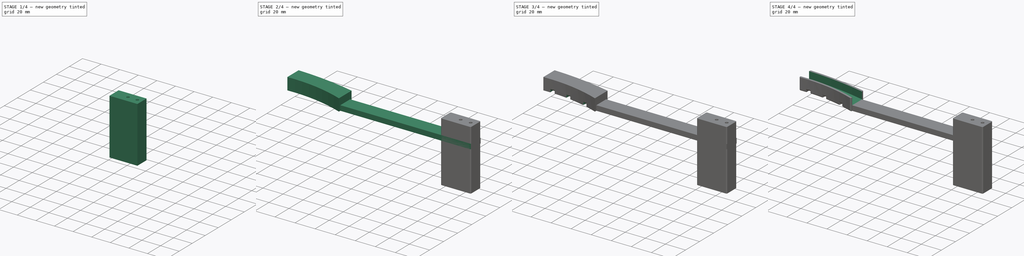
[diagram: build sequence overview — one tinted view per stage of 4, left to right]
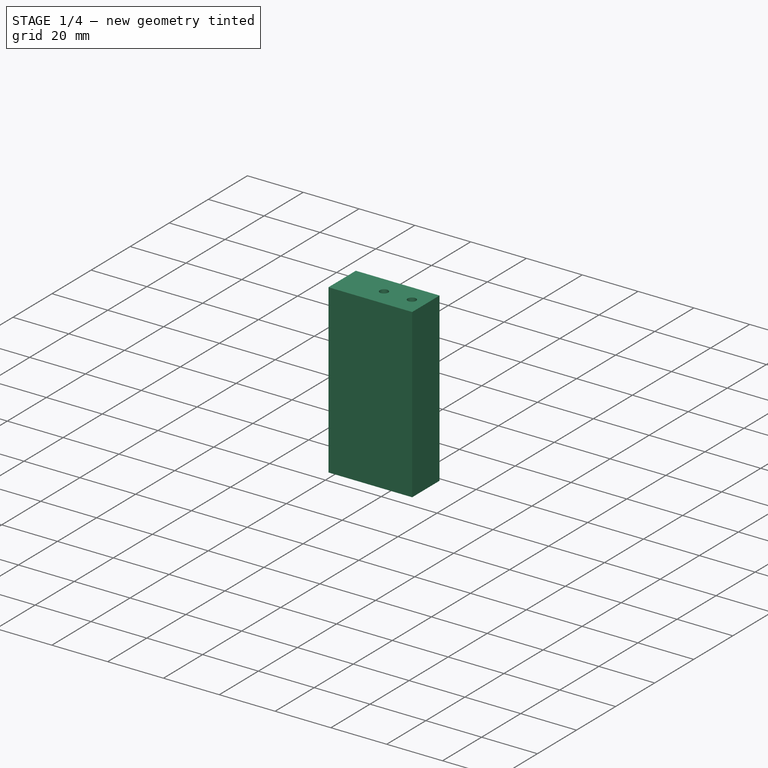
[diagram: stage 1 of 4 — iso view after this stage's code; geometry added in this stage tinted green]
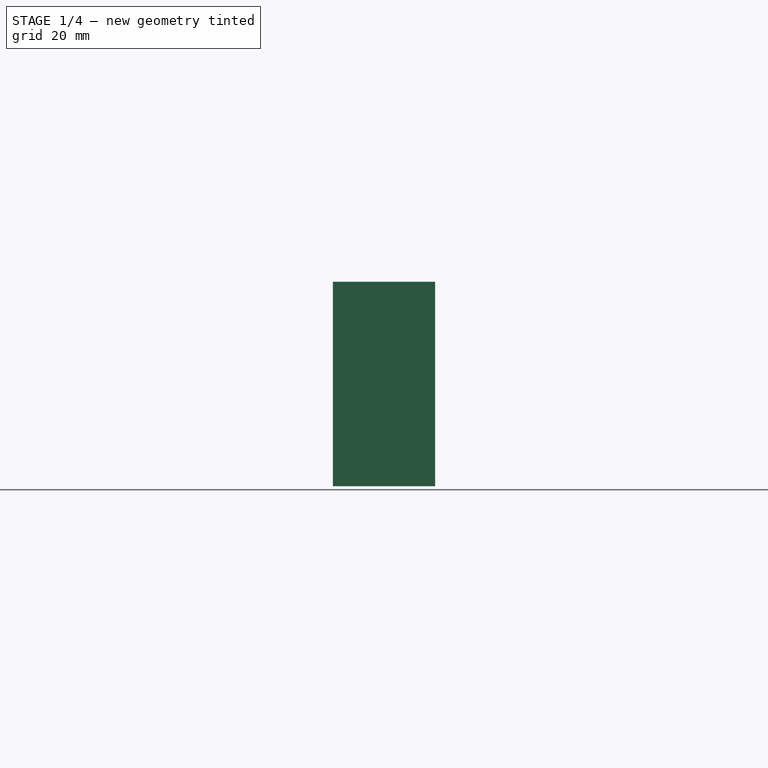
[diagram: stage 1 of 4 — front view after this stage's code; geometry added in this stage tinted green]
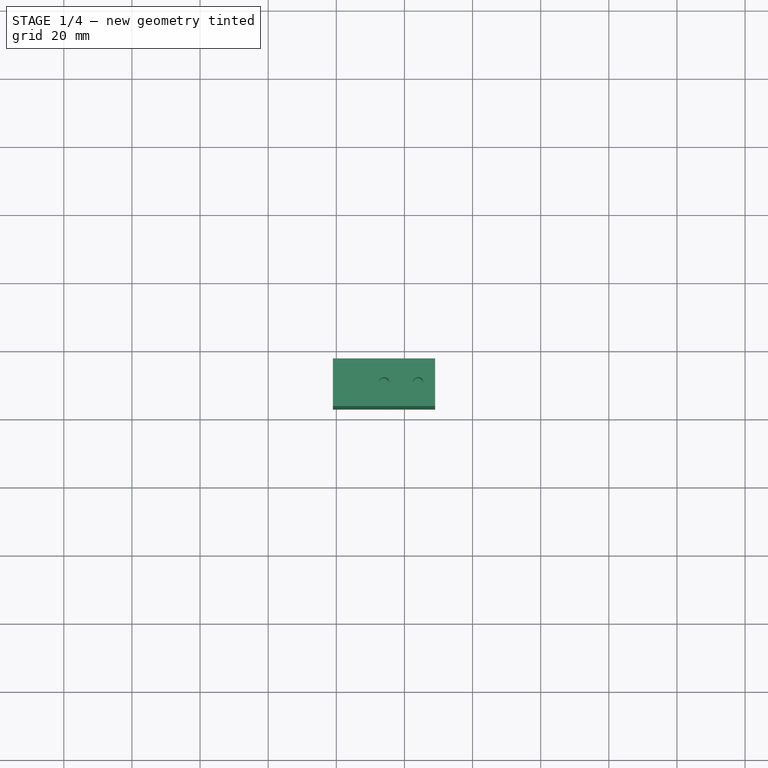
[diagram: stage 1 of 4 — top view after this stage's code; geometry added in this stage tinted green]
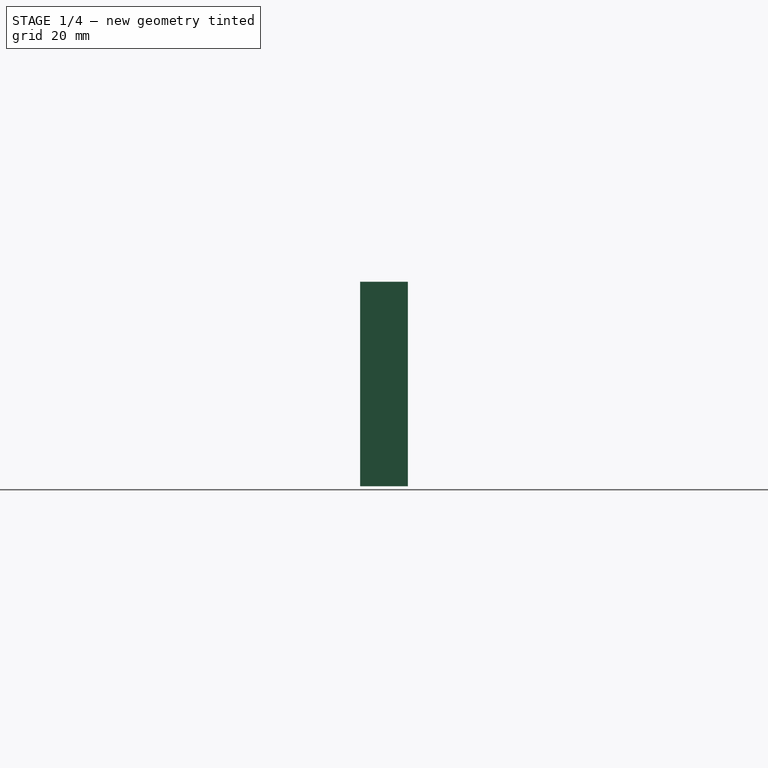
[diagram: stage 1 of 4 — right view after this stage's code; geometry added in this stage tinted green]
FCSTD DOCUMENT  (FreeCAD 0.18R16131 (Git))
Label: OvenHandleMount
License: All rights reserved
LicenseURL: http://en.wikipedia.org/wiki/All_rights_reserved
objects: Sketcher::SketchObject×11, PartDesign::Pad×4, PartDesign::SubtractivePipe×3, PartDesign::Fillet×2, PartDesign::Body×2, PartDesign::Pocket×1
note: 31 computed .brp shape members not serialized (recipe doc carries the construction recipe); baked Part::Feature solids carry a one-line shape summary decoded from their .brp

FEATURE [PartDesign::Body] Body
  Group = -> [Sketch,Pad,Pad002,SubtractivePipe005,SubtractivePipe,SubtractivePipe004,Sketch011,Pocket001,Sketch012,Sketch013,MirroredSketch001,MirroredSketch,MirroredSketch002,Sketch014,Fillet]
  Origin = -> Origin
  Tip = -> Fillet
FEATURE [Sketcher::SketchObject] Sketch015
  AttachmentOffset = pos=(0,0,4) rot=(0,0,1;0rad)
  MapMode = 5
  Placement = pos=(0,0,4) rot=(0,0,1;0rad)
  Support = -> [XY_Plane001]
  expr: Constraints[0] = -39 - 100
  sketch-geometry (8):
    g0: LineSegment StartX=169 StartY=37 StartZ=0 EndX=139 EndY=37 EndZ=0
    g1: LineSegment StartX=169 StartY=23 StartZ=0 EndX=139 EndY=23 EndZ=0
    g2: LineSegment StartX=139 StartY=37 StartZ=0 EndX=139 EndY=23 EndZ=0
    g3: Circle CenterX=164 CenterY=30 CenterZ=0 NormalX=0 NormalY=0 NormalZ=1 AngleXU=0 Radius=1.5
    g4: Circle CenterX=154 CenterY=30 CenterZ=0 NormalX=0 NormalY=0 NormalZ=1 AngleXU=0 Radius=1.5
    g5: GeomPoint X=139 Y=30 Z=0
    g6: LineSegment StartX=169 StartY=37 StartZ=0 EndX=169 EndY=23 EndZ=0
    g7: GeomPoint X=169 Y=30 Z=0
  constraints (20):
    c: DistanceX(g0,g-1) = -139
    c: DistanceY(g-1,g0) = 37
    c: Coincident(g2,g0)
    c: Coincident(g2,g1)
    c: Parallel(g0,g1)
    c: Horizontal(g0)
    c: DistanceX(g1,g1) = 30
    c: Diameter(g3) = 3
    c: Diameter(g4) = 3
    c: DistanceY(g4,g3) = 0
    c: DistanceX(g4,g3) = 10
    c: Symmetric(g1,g0,g5)
    c: DistanceY(g4,g5) = 0
    c: Coincident(g6,g0)
    c: Coincident(g6,g1)
    c: Symmetric(g0,g1,g7)
    c: DistanceX(g3,g7) = 5
    c: Vertical(g6)
    c: Vertical(g2)
    c: DistanceY(g2,g2) = 14
FEATURE [Sketcher::SketchObject] Sketch016
  AttachmentOffset = pos=(0,0,4) rot=(0,0,1;0rad)
  MapMode = 5
  Placement = pos=(0,0,4) rot=(0,0,1;0rad)
  Support = -> [XY_Plane001]
  expr: Constraints[0] = -39 - 100
  sketch-geometry (8):
    g0: LineSegment StartX=169 StartY=37 StartZ=0 EndX=139 EndY=37 EndZ=0
    g1: LineSegment StartX=169 StartY=23 StartZ=0 EndX=139 EndY=23 EndZ=0
    g2: LineSegment StartX=139 StartY=37 StartZ=0 EndX=139 EndY=23 EndZ=0
    g3: Circle [constr] CenterX=164 CenterY=30 CenterZ=0 NormalX=0 NormalY=0 NormalZ=1 AngleXU=0 Radius=1.5
    g4: Circle [constr] CenterX=154 CenterY=30 CenterZ=0 NormalX=0 NormalY=0 NormalZ=1 AngleXU=0 Radius=1.5
    g5: GeomPoint X=139 Y=30 Z=0
    g6: LineSegment StartX=169 StartY=37 StartZ=0 EndX=169 EndY=23 EndZ=0
    g7: GeomPoint X=169 Y=30 Z=0
  constraints (20):
    c: DistanceX(g0,g-1) = -139
    c: DistanceY(g-1,g0) = 37
    c: Coincident(g2,g0)
    c: Coincident(g2,g1)
    c: Parallel(g0,g1)
    c: Horizontal(g0)
    c: DistanceX(g1,g1) = 30
    c: Diameter(g3) = 3
    c: Diameter(g4) = 3
    c: DistanceY(g4,g3) = 0
    c: DistanceX(g4,g3) = 10
    c: Symmetric(g1,g0,g5)
    c: DistanceY(g4,g5) = 0
    c: Coincident(g6,g0)
    c: Coincident(g6,g1)
    c: Symmetric(g0,g1,g7)
    c: DistanceX(g3,g7) = 5
    c: Vertical(g6)
    c: Vertical(g2)
    c: DistanceY(g2,g2) = 14
FEATURE [PartDesign::Pad] Pad003
  Length = 20
  Length2 = 100
  Profile = -> Sketch015
  Type = 0
FEATURE [PartDesign::Pad] Pad004
  BaseFeature = -> Pad003
  Length = 40
  Length2 = 100
  Profile = -> Sketch016
  Reversed = true
  Type = 0
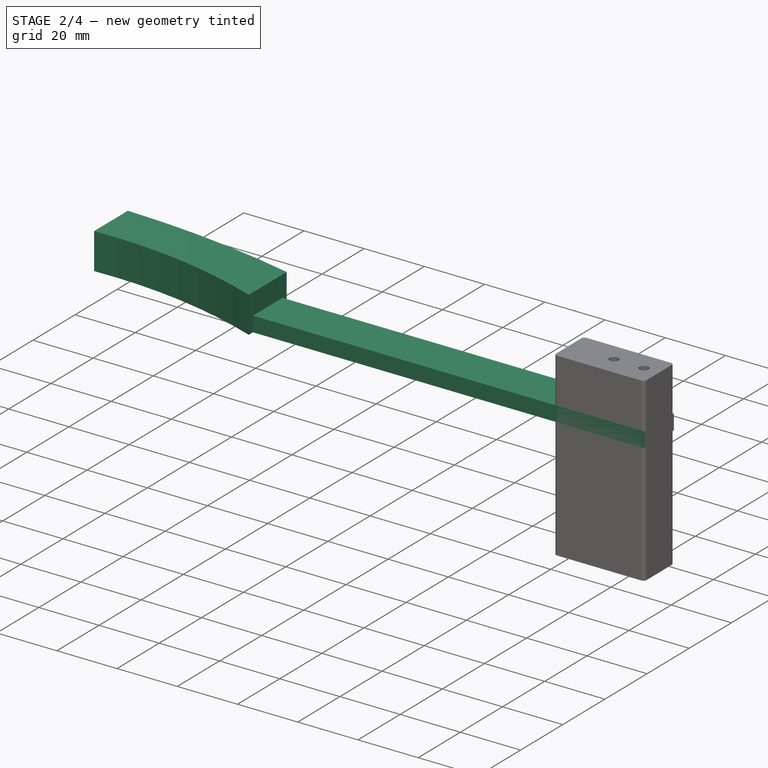
[diagram: stage 2 of 4 — iso view after this stage's code; geometry added in this stage tinted green]
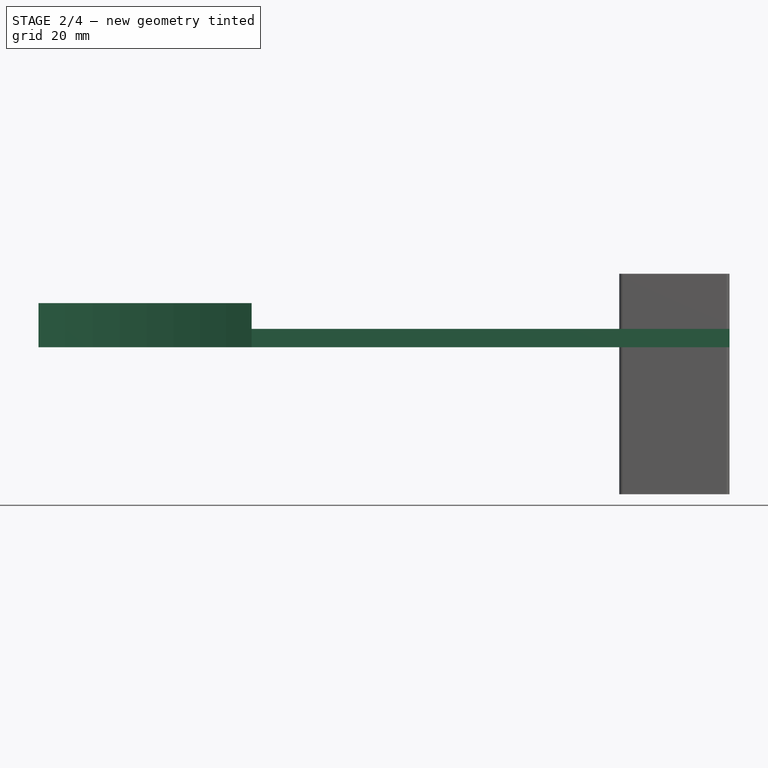
[diagram: stage 2 of 4 — front view after this stage's code; geometry added in this stage tinted green]
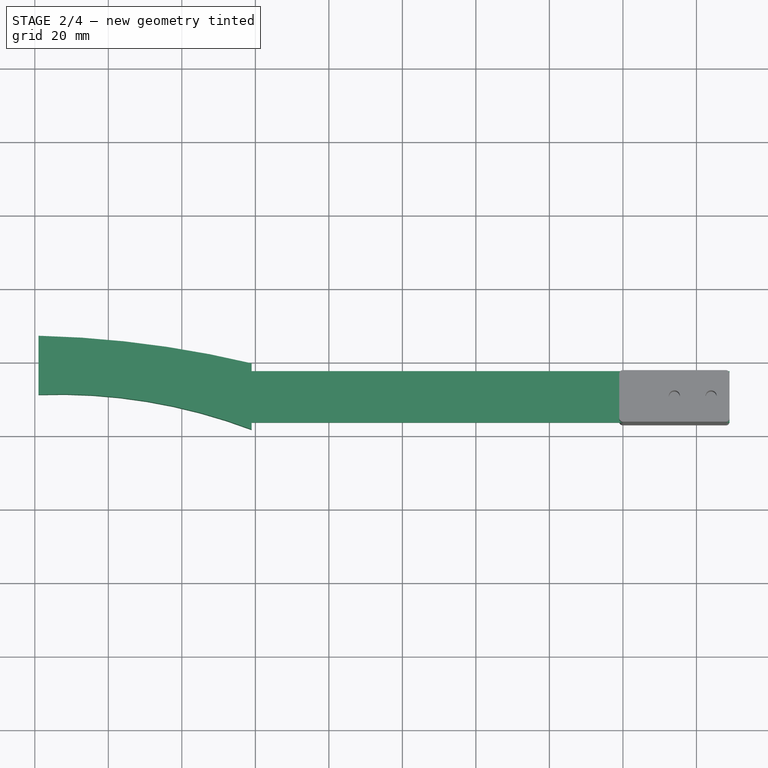
[diagram: stage 2 of 4 — top view after this stage's code; geometry added in this stage tinted green]
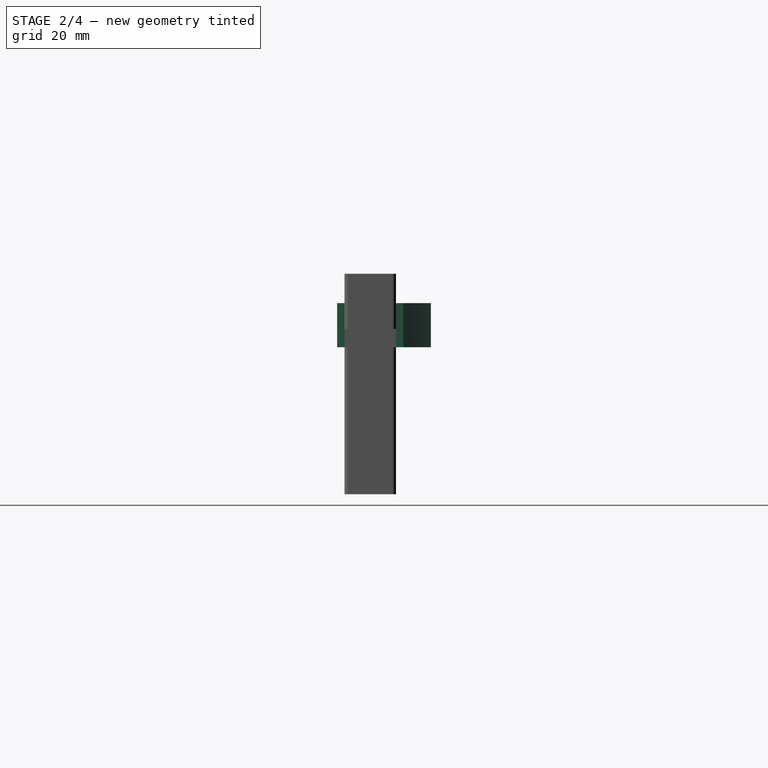
[diagram: stage 2 of 4 — right view after this stage's code; geometry added in this stage tinted green]
FEATURE [Sketcher::SketchObject] Sketch
  AttachmentOffset = pos=(0,0,4) rot=(0,0,1;0rad)
  MapMode = 5
  Placement = pos=(0,0,4) rot=(0,0,1;0rad)
  Support = -> [XY_Plane]
  sketch-geometry (17):
    g0: ArcOfCircle [constr] CenterX=-25.3963 CenterY=-232.982 CenterZ=0 NormalX=0 NormalY=0 NormalZ=1 AngleXU=0 Radius=277.555 StartAngle=1.33665 EndAngle=1.54775
    g1: GeomPoint X=-19 Y=44.5 Z=0
    g2: GeomPoint X=39 Y=37 Z=0
    g3: GeomPoint X=19 Y=41 Z=0
    g4: GeomPoint X=39 Y=23 Z=0
    g5: GeomPoint X=19 Y=29 Z=0
    g6: GeomPoint X=-19 Y=32.5 Z=0
    g7: ArcOfCircle [constr] CenterX=-13.4794 CenterY=-115.598 CenterZ=0 NormalX=0 NormalY=0 NormalZ=1 AngleXU=0 Radius=148.201 StartAngle=1.20883 EndAngle=1.60806
    g8: LineSegment [constr] StartX=39 StartY=37 StartZ=0 EndX=39 EndY=23 EndZ=0
    g9: LineSegment StartX=169 StartY=37 StartZ=0 EndX=39 EndY=37 EndZ=0
    g10: LineSegment StartX=169 StartY=23 StartZ=0 EndX=39 EndY=23 EndZ=0
    g11: LineSegment StartX=39 StartY=37 StartZ=0 EndX=39 EndY=23 EndZ=0
    g12: Circle CenterX=164 CenterY=30 CenterZ=0 NormalX=0 NormalY=0 NormalZ=1 AngleXU=0 Radius=1.65
    g13: Circle CenterX=154 CenterY=30 CenterZ=0 NormalX=0 NormalY=0 NormalZ=1 AngleXU=0 Radius=1.65
    g14: GeomPoint X=39 Y=30 Z=0
    g15: LineSegment StartX=169 StartY=37 StartZ=0 EndX=169 EndY=23 EndZ=0
    g16: GeomPoint X=169 Y=30 Z=0
  constraints (38):
    c: DistanceX(g3,g-1) = -19
    c: DistanceX(g2,g-1) = -39
    c: DistanceX(g-1,g1) = -19
    c: DistanceY(g-1,g2) = 37
    c: DistanceY(g-1,g3) = 41
    c: DistanceY(g-1,g1) = 44.5
    c: DistanceX(g-1,g6) = -19
    c: DistanceX(g5,g-1) = -19
    c: DistanceX(g4,g-1) = -39
    c: DistanceY(g-1,g4) = 23
    c: DistanceY(g-1,g5) = 29
    c: DistanceY(g-1,g6) = 32.5
    c: PointOnObject(g5,g7)
    c: PointOnObject(g3,g0)
    c: Coincident(g7,g4)
    c: Coincident(g2,g0)
    c: Coincident(g6,g7)
    c: Coincident(g0,g1)
    c: Coincident(g8,g0)
    c: Coincident(g8,g4)
    c: Coincident(g11,g9)
    c: Coincident(g11,g10)
    c: Parallel(g9,g10)
    c: Horizontal(g9)
    c: DistanceX(g10,g10) = 130
    c: Diameter(g12) = 3.3
    c: Diameter(g13) = 3.3
    c: DistanceY(g13,g12) = 0
    c: DistanceX(g13,g12) = 10
    c: Symmetric(g10,g9,g14)
    c: DistanceY(g13,g14) = 0
    c: Coincident(g15,g9)
    c: Coincident(g15,g10)
    c: Symmetric(g9,g10,g16)
    c: DistanceX(g12,g16) = 5
    c: Vertical(g15)
    c: Coincident(g2,g9)
    c: Coincident(g10,g4)
FEATURE [PartDesign::Pad] Pad
  Length = 5
  Length2 = 100
  Profile = -> Sketch
  Type = 0
FEATURE [Sketcher::SketchObject] Sketch004
  MapMode = 5
  Placement = pos=(0,0,4) rot=(0,0,1;0rad)
  sketch-geometry (22):
    g0: ArcOfCircle [constr] CenterX=-25.3963 CenterY=-232.982 CenterZ=0 NormalX=0 NormalY=0 NormalZ=1 AngleXU=0 Radius=277.555 StartAngle=1.33665 EndAngle=1.54775
    g1: GeomPoint X=-19 Y=44.5 Z=0
    g2: GeomPoint X=39 Y=37 Z=0
    g3: GeomPoint X=19 Y=41 Z=0
    g4: GeomPoint X=39 Y=23 Z=0
    g5: GeomPoint X=19 Y=29 Z=0
    g6: GeomPoint X=-19 Y=32.5 Z=0
    g7: ArcOfCircle [constr] CenterX=-13.4794 CenterY=-115.598 CenterZ=0 NormalX=0 NormalY=0 NormalZ=1 AngleXU=0 Radius=148.201 StartAngle=1.20883 EndAngle=1.60806
    g8: GeomPoint X=-19 Y=46.5 Z=0
    g9: GeomPoint X=19 Y=43 Z=0
    g10: GeomPoint X=39 Y=39 Z=0
    g11: GeomPoint X=-19 Y=30.5 Z=0
    g12: GeomPoint X=19 Y=27 Z=0
    g13: GeomPoint X=39 Y=21 Z=0
    g14: ArcOfCircle CenterX=-25.3963 CenterY=-230.982 CenterZ=0 NormalX=0 NormalY=0 NormalZ=1 AngleXU=0 Radius=277.555 StartAngle=1.33665 EndAngle=1.54775
    g15: ArcOfCircle CenterX=-13.4794 CenterY=-117.598 CenterZ=0 NormalX=0 NormalY=0 NormalZ=1 AngleXU=0 Radius=148.201 StartAngle=1.20883 EndAngle=1.60806
    g16: LineSegment [constr] StartX=-19 StartY=46.5 StartZ=0 EndX=-19 EndY=44.5 EndZ=0
    g17: LineSegment [constr] StartX=39 StartY=39 StartZ=0 EndX=39 EndY=37 EndZ=0
    g18: LineSegment [constr] StartX=39 StartY=23 StartZ=0 EndX=39 EndY=21 EndZ=0
    g19: LineSegment [constr] StartX=-19 StartY=32.5 StartZ=0 EndX=-19 EndY=30.5 EndZ=0
    g20: LineSegment StartX=39 StartY=39 StartZ=0 EndX=39 EndY=21 EndZ=0
    g21: LineSegment StartX=-19 StartY=46.5 StartZ=0 EndX=-19 EndY=30.5 EndZ=0
  constraints (48):
    c: DistanceX(g3,g-1) = -19
    c: DistanceX(g2,g-1) = -39
    c: DistanceX(g-1,g1) = -19
    c: DistanceY(g-1,g2) = 37
    c: DistanceY(g-1,g3) = 41
    c: DistanceY(g-1,g1) = 44.5
    c: DistanceX(g-1,g6) = -19
    c: DistanceX(g5,g-1) = -19
    c: DistanceX(g4,g-1) = -39
    c: DistanceY(g-1,g4) = 23
    c: DistanceY(g-1,g5) = 29
    c: DistanceY(g-1,g6) = 32.5
    c: PointOnObject(g5,g7)
    c: PointOnObject(g3,g0)
    c: Coincident(g7,g4)
    c: Coincident(g2,g0)
    c: Coincident(g6,g7)
    c: Coincident(g0,g1)
    c: DistanceX(g4,g13) = 0
    c: DistanceX(g0,g10) = 0
    c: DistanceX(g3,g9) = 0
    c: DistanceX(g8,g0) = 0
    c: DistanceX(g11,g6) = 0
    c: DistanceX(g12,g5) = 0
    c: Coincident(g13,g15)
    c: Coincident(g11,g15)
    c: Coincident(g8,g14)
    c: Coincident(g14,g10)
    c: PointOnObject(g9,g14)
    c: PointOnObject(g12,g15)
    c: DistanceY(g12,g5) = 2
    c: DistanceY(g13,g4) = 2
    c: DistanceY(g11,g6) = 2
    c: DistanceY(g0,g8) = 2
    c: DistanceY(g3,g9) = 2
    c: DistanceY(g10,g0) = -2
    c: Coincident(g16,g8)
    c: Coincident(g16,g0)
    c: Coincident(g19,g6)
    c: Coincident(g19,g11)
    c: Coincident(g18,g4)
    c: Coincident(g18,g13)
    c: Coincident(g17,g10)
    c: Coincident(g17,g0)
    c: Coincident(g21,g11)
    c: Coincident(g21,g8)
    c: Coincident(g20,g10)
    c: Coincident(g20,g13)
FEATURE [PartDesign::Pad] Pad002
  BaseFeature = -> Pad
  Length = 12
  Length2 = 100
  Profile = -> Sketch004
  Type = 0
FEATURE [PartDesign::Fillet] Fillet001
  Base = -> Pad004 [Edge18,Edge11,Edge20,Edge12]
  BaseFeature = -> Pad004
  Radius = 1
FEATURE [PartDesign::Body] Body001
  Group = -> [Sketch015,Pad003,Sketch016,Pad004,Fillet001]
  Origin = -> Origin001
  Placement = pos=(0,60,33) rot=(1,0,0;3.14159rad)
  Tip = -> Fillet001
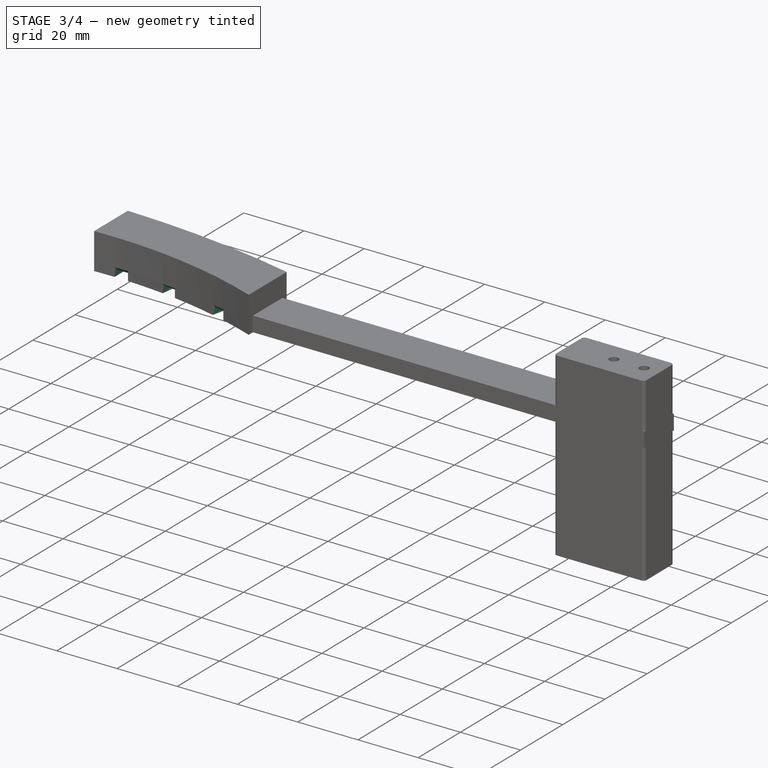
[diagram: stage 3 of 4 — iso view after this stage's code; geometry added in this stage tinted green]
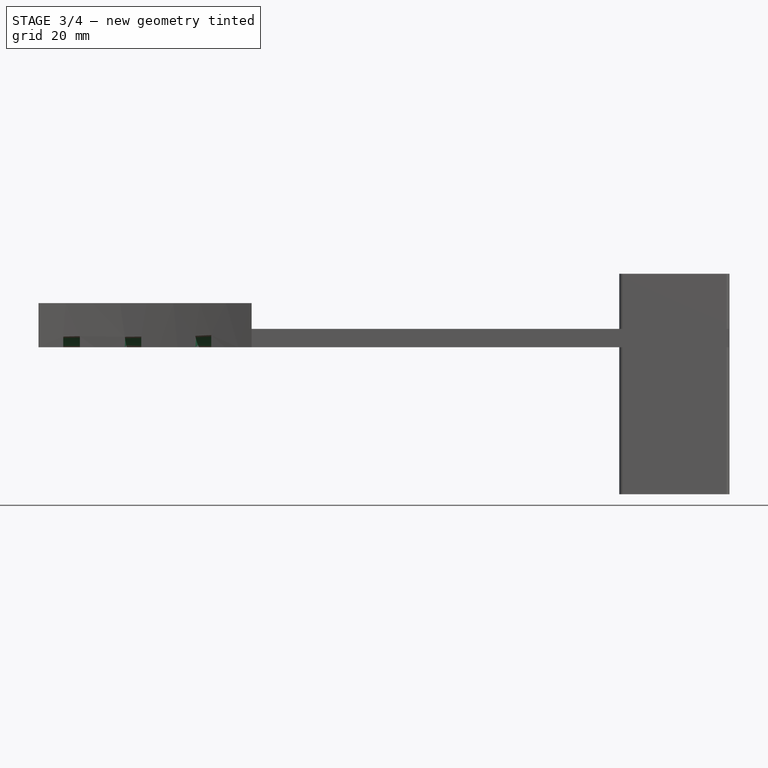
[diagram: stage 3 of 4 — front view after this stage's code; geometry added in this stage tinted green]
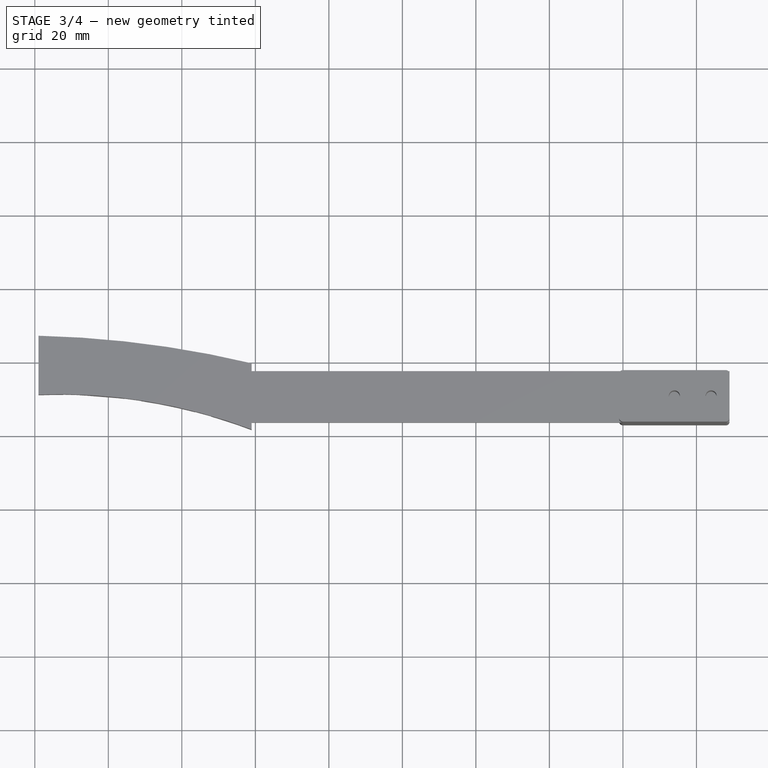
[diagram: stage 3 of 4 — top view after this stage's code; geometry added in this stage tinted green]
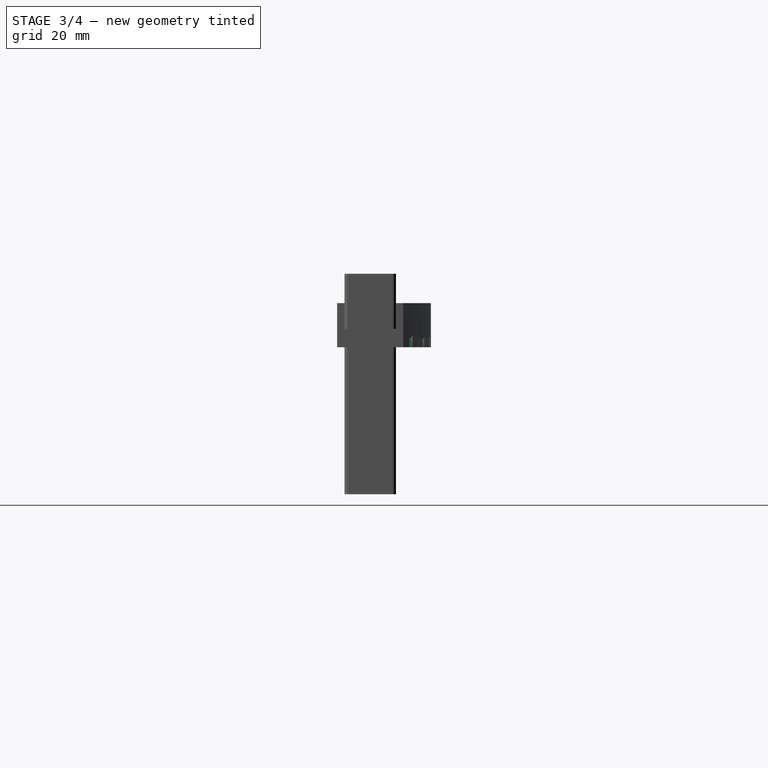
[diagram: stage 3 of 4 — right view after this stage's code; geometry added in this stage tinted green]
FEATURE [Sketcher::SketchObject] Sketch011
  AttachmentOffset = pos=(0,0,9) rot=(0,0,1;0rad)
  MapMode = 5
  Placement = pos=(0,0,9) rot=(0,0,1;0rad)
  Support = -> [XY_Plane]
  sketch-geometry (22):
    g0: ArcOfCircle CenterX=-25.3963 CenterY=-232.982 CenterZ=0 NormalX=0 NormalY=0 NormalZ=1 AngleXU=0 Radius=277.555 StartAngle=1.33665 EndAngle=1.54775
    g1: GeomPoint X=-19 Y=44.5 Z=0
    g2: GeomPoint X=39 Y=37 Z=0
    g3: GeomPoint X=19 Y=41 Z=0
    g4: GeomPoint X=39 Y=23 Z=0
    g5: GeomPoint X=19 Y=29 Z=0
    g6: GeomPoint X=-19 Y=32.5 Z=0
    g7: ArcOfCircle CenterX=-13.4794 CenterY=-115.598 CenterZ=0 NormalX=0 NormalY=0 NormalZ=1 AngleXU=0 Radius=148.201 StartAngle=1.20883 EndAngle=1.60806
    g8: GeomPoint X=-19 Y=46.5 Z=0
    g9: GeomPoint X=19 Y=43 Z=0
    g10: GeomPoint X=39 Y=39 Z=0
    g11: GeomPoint X=-19 Y=30.5 Z=0
    g12: GeomPoint X=19 Y=27 Z=0
    g13: GeomPoint X=39 Y=21 Z=0
    g14: ArcOfCircle [constr] CenterX=-25.3963 CenterY=-230.982 CenterZ=0 NormalX=0 NormalY=0 NormalZ=1 AngleXU=0 Radius=277.555 StartAngle=1.33665 EndAngle=1.54775
    g15: ArcOfCircle [constr] CenterX=-13.4794 CenterY=-117.598 CenterZ=0 NormalX=0 NormalY=0 NormalZ=1 AngleXU=0 Radius=148.201 StartAngle=1.20883 EndAngle=1.60806
    g16: LineSegment [constr] StartX=-19 StartY=46.5 StartZ=0 EndX=-19 EndY=44.5 EndZ=0
    g17: LineSegment [constr] StartX=39 StartY=39 StartZ=0 EndX=39 EndY=37 EndZ=0
    g18: LineSegment [constr] StartX=39 StartY=23 StartZ=0 EndX=39 EndY=21 EndZ=0
    g19: LineSegment [constr] StartX=-19 StartY=32.5 StartZ=0 EndX=-19 EndY=30.5 EndZ=0
    g20: LineSegment StartX=-19 StartY=44.5 StartZ=0 EndX=-19 EndY=32.5 EndZ=0
    g21: LineSegment StartX=39 StartY=37 StartZ=0 EndX=39 EndY=23 EndZ=0
  constraints (48):
    c: DistanceX(g3,g-1) = -19
    c: DistanceX(g2,g-1) = -39
    c: DistanceX(g-1,g1) = -19
    c: DistanceY(g-1,g2) = 37
    c: DistanceY(g-1,g3) = 41
    c: DistanceY(g-1,g1) = 44.5
    c: DistanceX(g-1,g6) = -19
    c: DistanceX(g5,g-1) = -19
    c: DistanceX(g4,g-1) = -39
    c: DistanceY(g-1,g4) = 23
    c: DistanceY(g-1,g5) = 29
    c: DistanceY(g-1,g6) = 32.5
    c: PointOnObject(g5,g7)
    c: PointOnObject(g3,g0)
    c: Coincident(g7,g4)
    c: Coincident(g2,g0)
    c: Coincident(g6,g7)
    c: Coincident(g0,g1)
    c: DistanceX(g4,g13) = 0
    c: DistanceX(g0,g10) = 0
    c: DistanceX(g3,g9) = 0
    c: DistanceX(g8,g0) = 0
    c: DistanceX(g11,g6) = 0
    c: DistanceX(g12,g5) = 0
    c: Coincident(g13,g15)
    c: Coincident(g11,g15)
    c: Coincident(g8,g14)
    c: Coincident(g14,g10)
    c: PointOnObject(g9,g14)
    c: PointOnObject(g12,g15)
    c: DistanceY(g12,g5) = 2
    c: DistanceY(g13,g4) = 2
    c: DistanceY(g11,g6) = 2
    c: DistanceY(g0,g8) = 2
    c: DistanceY(g3,g9) = 2
    c: DistanceY(g10,g0) = -2
    c: Coincident(g16,g8)
    c: Coincident(g16,g0)
    c: Coincident(g19,g6)
    c: Coincident(g19,g11)
    c: Coincident(g18,g4)
    c: Coincident(g18,g13)
    c: Coincident(g17,g10)
    c: Coincident(g17,g0)
    c: Coincident(g0,g20)
    c: Coincident(g20,g6)
    c: Coincident(g4,g21)
    c: Coincident(g0,g21)
FEATURE [Sketcher::SketchObject] MirroredSketch
  Placement = pos=(3,-1.2,12.3) rot=(0.624333,0.552362,0.552362;2.02535rad)
  sketch-geometry (2):
    g0: ArcOfCircle CenterX=38.424 CenterY=2.2 CenterZ=0 NormalX=0 NormalY=0 NormalZ=1 AngleXU=0 Radius=12.425 StartAngle=3.23994 EndAngle=6.18484
    g1: GeomPoint X=38.424 Y=0.98 Z=0
  constraints (6):
    c: Symmetric(g0,g0,g1)
    c: Diameter(g0) = 24.85
    c: DistanceX(g-1,g1) = 38.424
    c: DistanceX(g0,g1) = 0
    c: DistanceY(g1,g0) = 1.22
    c: DistanceY(g-1,g0) = 2.2
FEATURE [Sketcher::SketchObject] Sketch013
  ExternalGeometry = -> [MirroredSketch]
  MapMode = 5
  Placement = pos=(-2.57073,0.67723,13.5) rot=(0,0,-1;0.122173rad)
  sketch-geometry (4):
    g0: LineSegment StartX=8.00809 StartY=26.3747 StartZ=0 EndX=3.50809 EndY=26.3747 EndZ=0
    g1: LineSegment StartX=3.50809 StartY=26.3747 StartZ=0 EndX=3.50809 EndY=23.3747 EndZ=0
    g2: LineSegment StartX=3.50809 StartY=23.3747 StartZ=0 EndX=8.00809 EndY=23.3747 EndZ=0
    g3: LineSegment StartX=8.00809 StartY=23.3747 StartZ=0 EndX=8.00809 EndY=26.3747 EndZ=0
  constraints (11):
    c: Coincident(g0,g1)
    c: Coincident(g1,g2)
    c: Coincident(g2,g3)
    c: Coincident(g3,g0)
    c: Horizontal(g0)
    c: Horizontal(g2)
    c: Vertical(g1)
    c: Vertical(g3)
    c: DistanceX(g2,g2) = 4.5
    c: DistanceY(g3,g3) = 3
    c: Symmetric(g1,g0,g-3)
FEATURE [Sketcher::SketchObject] MirroredSketch002
  Placement = pos=(19,-4.3,12) rot=(0.664392,0.52848,0.52848;1.96875rad)
  sketch-geometry (2):
    g0: ArcOfCircle CenterX=38.424 CenterY=2.2 CenterZ=0 NormalX=0 NormalY=0 NormalZ=1 AngleXU=0 Radius=12.425 StartAngle=3.23994 EndAngle=6.18484
    g1: GeomPoint X=38.424 Y=0.98 Z=0
  constraints (6):
    c: Symmetric(g0,g0,g1)
    c: Diameter(g0) = 24.85
    c: DistanceX(g0,g1) = 0
    c: DistanceX(g-1,g1) = 38.424
    c: DistanceY(g1,g0) = 1.22
    c: DistanceY(g-1,g0) = 2.2
FEATURE [Sketcher::SketchObject] Sketch014
  ExternalGeometry = -> [MirroredSketch002]
  MapMode = 5
  Placement = pos=(-3.5,2,13) rot=(0,0,-1;0.226893rad)
  sketch-geometry (4):
    g0: LineSegment StartX=25.5905 StartY=26.7319 StartZ=0 EndX=21.0905 EndY=26.7319 EndZ=0
    g1: LineSegment StartX=21.0905 StartY=26.7319 StartZ=0 EndX=21.0905 EndY=23.2319 EndZ=0
    g2: LineSegment StartX=21.0905 StartY=23.2319 StartZ=0 EndX=25.5905 EndY=23.2319 EndZ=0
    g3: LineSegment StartX=25.5905 StartY=23.2319 StartZ=0 EndX=25.5905 EndY=26.7319 EndZ=0
  constraints (11):
    c: Coincident(g1,g2)
    c: Coincident(g0,g1)
    c: Coincident(g2,g3)
    c: Coincident(g0,g3)
    c: DistanceX(g0,g0) = 4.5
    c: DistanceY(g1,g1) = 3.5
    c: Parallel(g1,g3)
    c: Parallel(g0,g2)
    c: Perpendicular(g2,g1)
    c: Horizontal(g0)
    c: Symmetric(g1,g0,g-3)
FEATURE [Sketcher::SketchObject] MirroredSketch001
  Placement = pos=(-10,0,12.3) rot=(0.57735,0.57735,0.57735;2.0944rad)
  sketch-geometry (2):
    g0: ArcOfCircle CenterX=38.424 CenterY=2.2 CenterZ=0 NormalX=0 NormalY=0 NormalZ=1 AngleXU=0 Radius=12.425 StartAngle=3.23994 EndAngle=6.18484
    g1: GeomPoint X=38.424 Y=0.98 Z=0
  constraints (6):
    c: Symmetric(g0,g0,g1)
    c: Diameter(g0) = 24.85
    c: DistanceY(g1,g0) = 1.22
    c: DistanceX(g-1,g1) = 38.424
    c: DistanceY(g-1,g0) = 2.2
    c: DistanceX(g0,g1) = 0
FEATURE [Sketcher::SketchObject] Sketch012
  ExternalGeometry = -> [MirroredSketch001]
  MapMode = 5
  Placement = pos=(0,0,13.5) rot=(0,1,0;0rad)
  sketch-geometry (4):
    g0: LineSegment StartX=-7.75 StartY=27.559 StartZ=0 EndX=-12.25 EndY=27.559 EndZ=0
    g1: LineSegment StartX=-12.25 StartY=27.559 StartZ=0 EndX=-12.25 EndY=24.559 EndZ=0
    g2: LineSegment StartX=-12.25 StartY=24.559 StartZ=0 EndX=-7.75 EndY=24.559 EndZ=0
    g3: LineSegment StartX=-7.75 StartY=24.559 StartZ=0 EndX=-7.75 EndY=27.559 EndZ=0
  constraints (11):
    c: Coincident(g1,g2)
    c: Coincident(g0,g1)
    c: Coincident(g2,g3)
    c: Coincident(g0,g3)
    c: DistanceY(g1,g1) = 3
    c: DistanceX(g0,g0) = 4.5
    c: Parallel(g1,g3)
    c: Parallel(g0,g2)
    c: Symmetric(g1,g0,g-3)
    c: Perpendicular(g2,g1)
    c: Horizontal(g0)
FEATURE [PartDesign::SubtractivePipe] SubtractivePipe005
  AuxilleryCurvelinear = true
  AuxillerySpineTangent = false
  BaseFeature = -> Pad002
  Binormal = (0,0,0)
  Mode = 0
  Profile = -> Sketch012
  Spine = -> MirroredSketch001
  SpineTangent = false
  Transformation = 0
  Transition = 0
FEATURE [PartDesign::SubtractivePipe] SubtractivePipe
  AuxilleryCurvelinear = true
  AuxillerySpineTangent = false
  BaseFeature = -> SubtractivePipe005
  Binormal = (0,0,0)
  Mode = 0
  Profile = -> Sketch013
  Spine = -> MirroredSketch
  SpineTangent = false
  Transformation = 0
  Transition = 0
FEATURE [PartDesign::SubtractivePipe] SubtractivePipe004
  AuxilleryCurvelinear = true
  AuxillerySpineTangent = false
  BaseFeature = -> SubtractivePipe
  Binormal = (0,0,0)
  Mode = 0
  Profile = -> Sketch014
  Spine = -> MirroredSketch002
  SpineTangent = false
  Transformation = 0
  Transition = 0
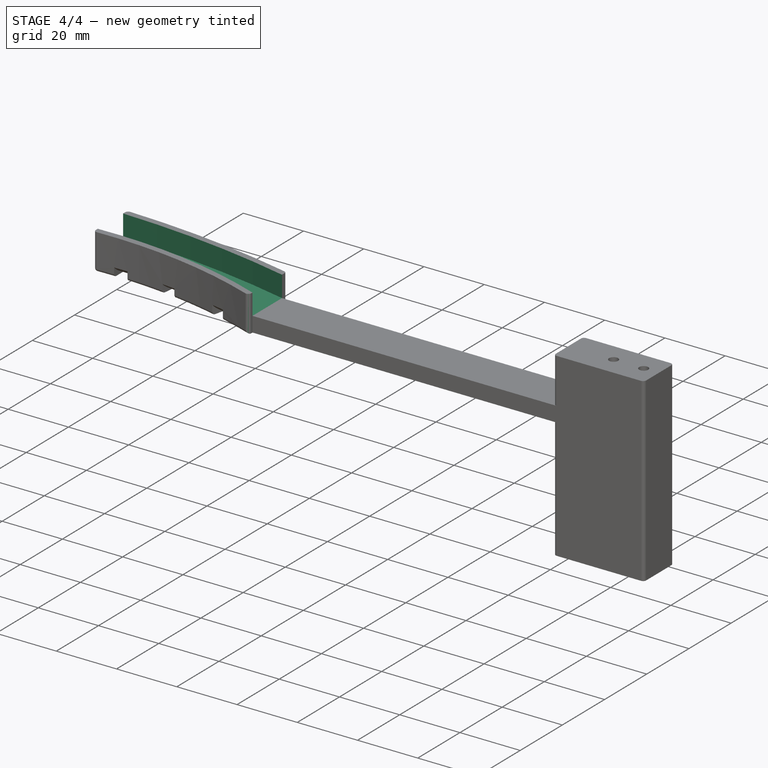
[diagram: stage 4 of 4 — iso view after this stage's code; geometry added in this stage tinted green]
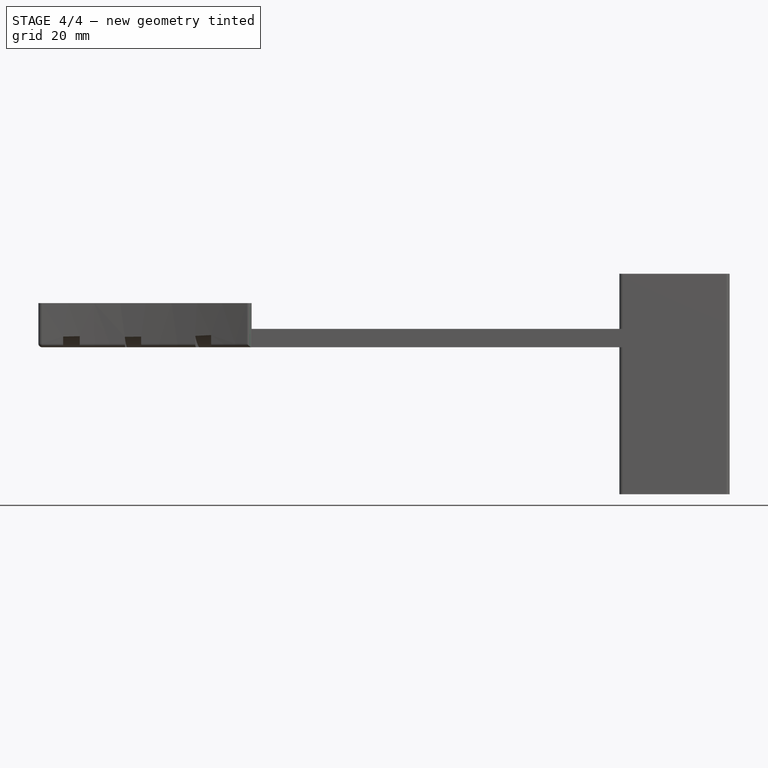
[diagram: stage 4 of 4 — front view after this stage's code; geometry added in this stage tinted green]
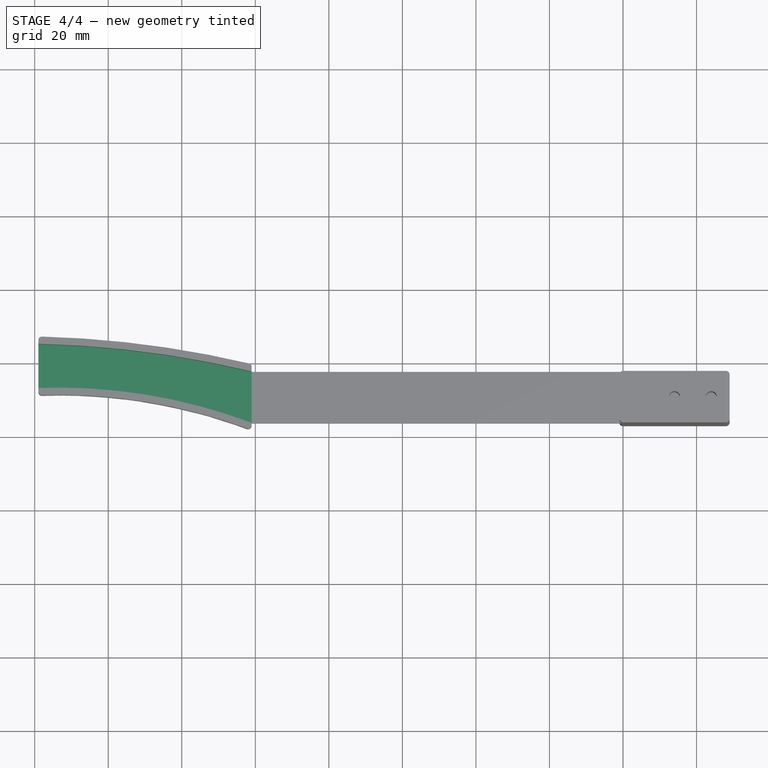
[diagram: stage 4 of 4 — top view after this stage's code; geometry added in this stage tinted green]
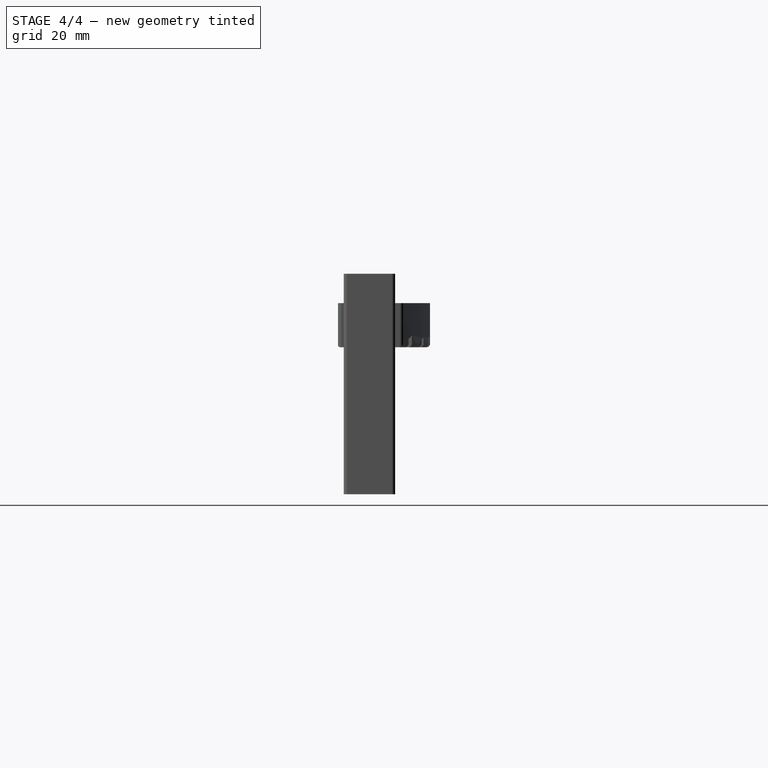
[diagram: stage 4 of 4 — right view after this stage's code; geometry added in this stage tinted green]
FEATURE [PartDesign::Pocket] Pocket001
  BaseFeature = -> SubtractivePipe004
  Length = 5
  Length2 = 100
  Profile = -> Sketch011
  Reversed = true
  Type = 1
FEATURE [PartDesign::Fillet] Fillet
  Base = -> Pocket001 [Edge8,Edge12,Edge16,Edge20,Edge70,Edge21,Edge52,Edge22,Edge26,Edge30,Edge34,Edge5,Edge58,Edge35,Edge87]
  BaseFeature = -> Pocket001
  Radius = 1
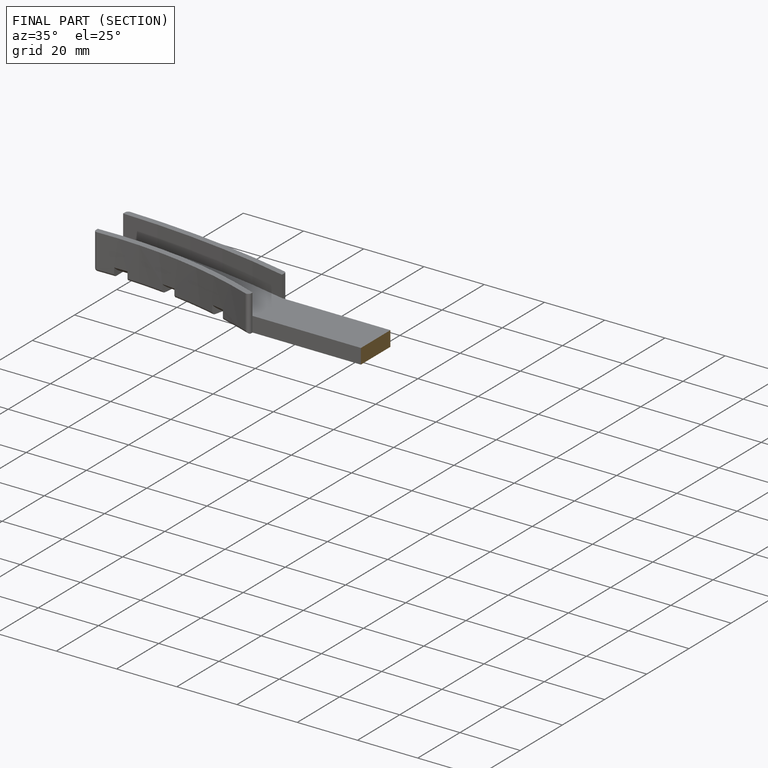
[diagram: finished part — half-section view (interior)]
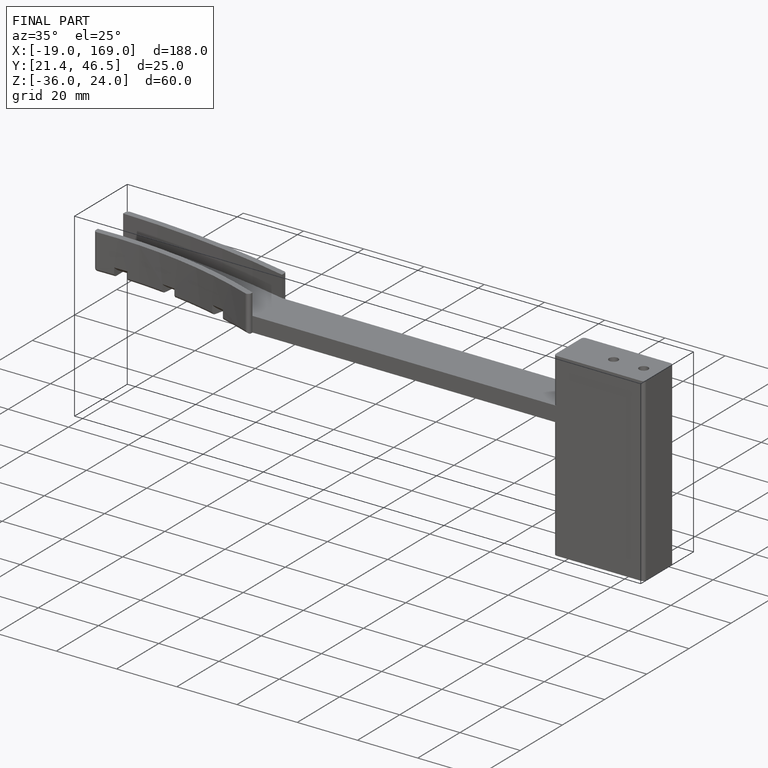
[diagram: finished part — iso view with bounding-box wireframe]
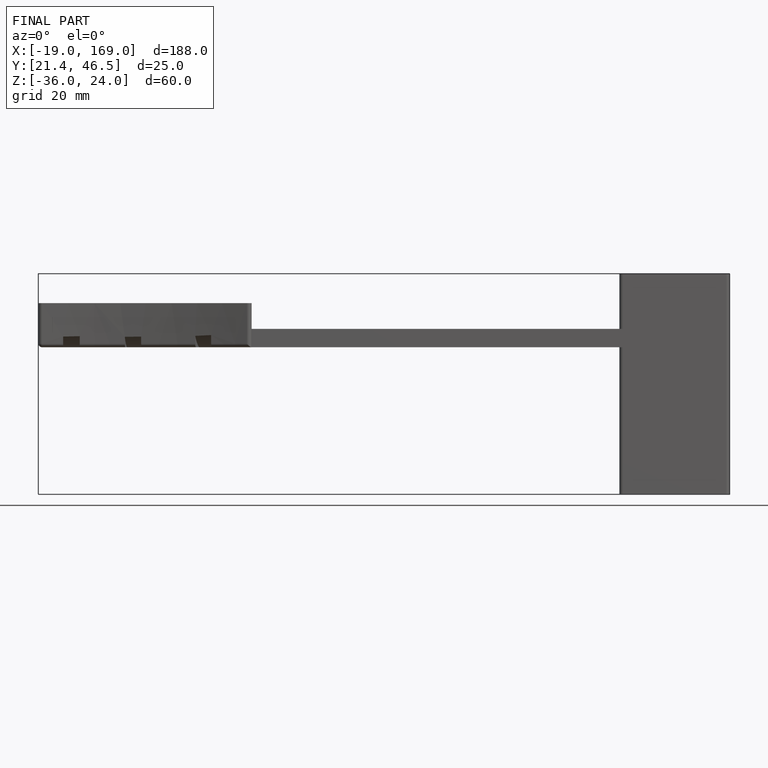
[diagram: finished part — front view with bounding-box wireframe]
